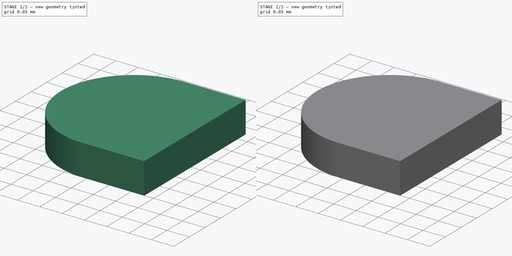
[diagram: build sequence overview — one tinted view per stage of 2, left to right]
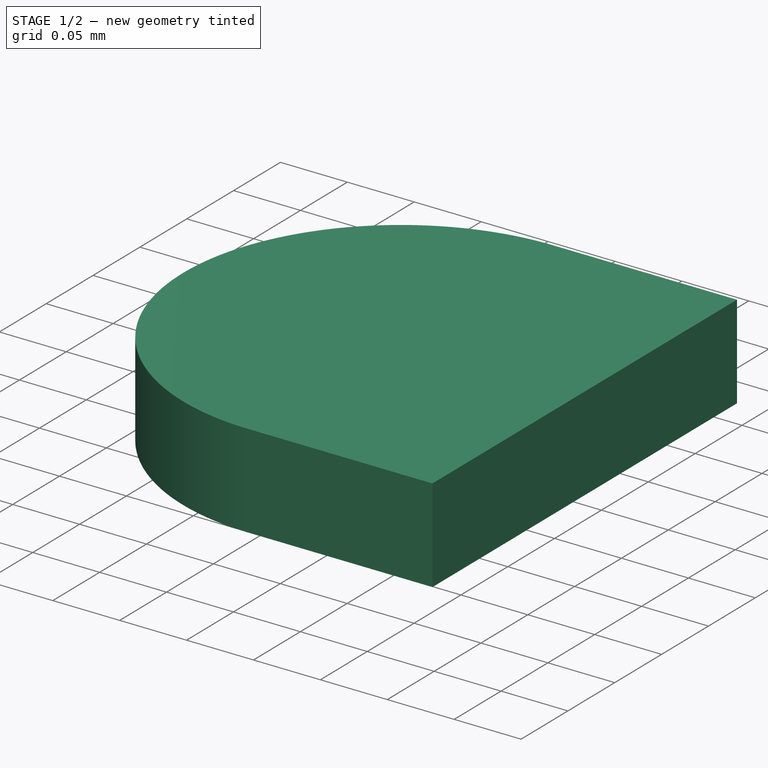
[diagram: stage 1 of 2 — iso view after this stage's code; geometry added in this stage tinted green]
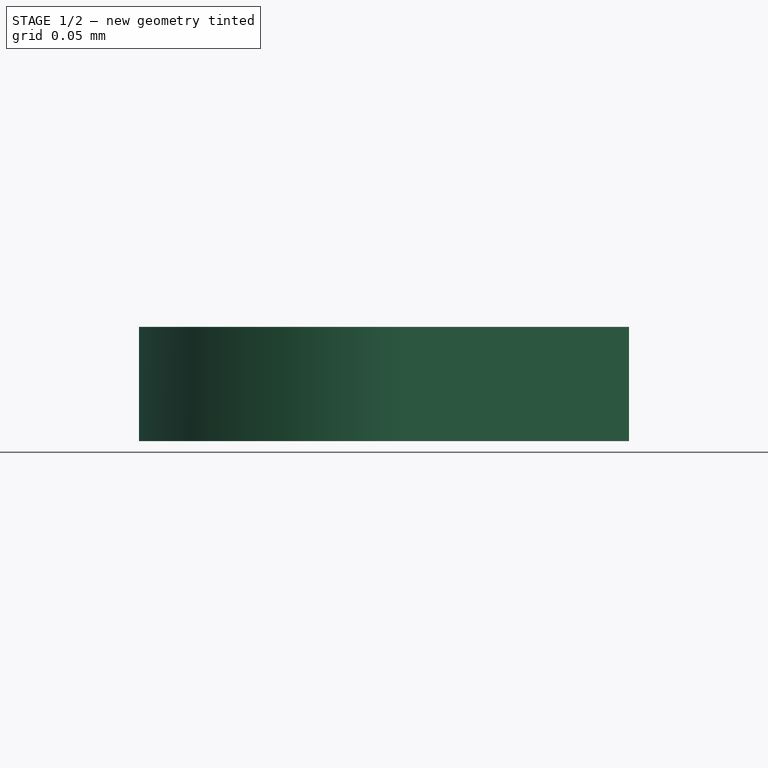
[diagram: stage 1 of 2 — front view after this stage's code; geometry added in this stage tinted green]
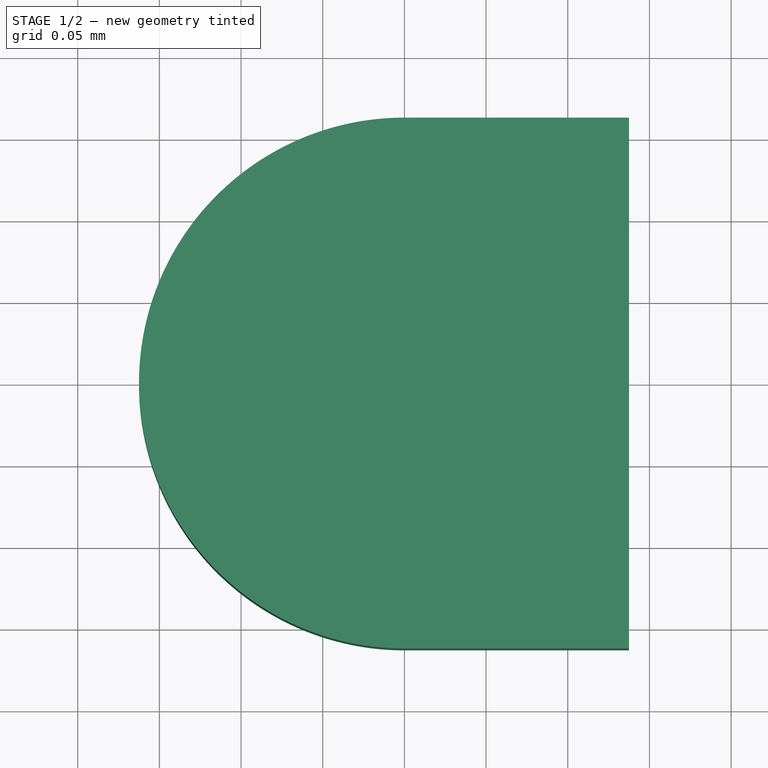
[diagram: stage 1 of 2 — top view after this stage's code; geometry added in this stage tinted green]
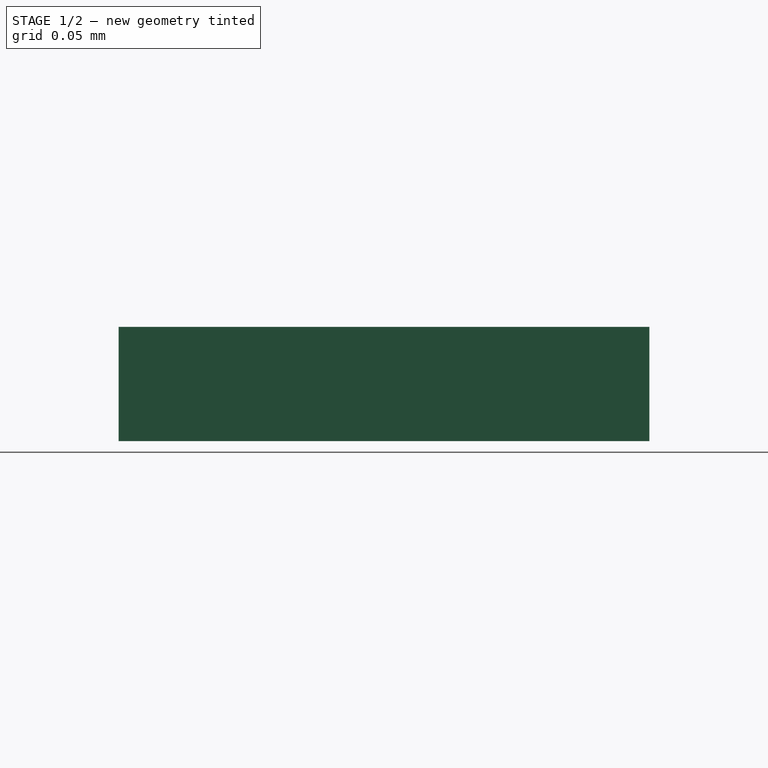
[diagram: stage 1 of 2 — right view after this stage's code; geometry added in this stage tinted green]
FCSTD DOCUMENT  (FreeCAD 0.16R6698 (Git))
Label: moon_base
License: All rights reserved
LicenseURL: http://en.wikipedia.org/wiki/All_rights_reserved
objects: Sketcher::SketchObject×2, PartDesign::Pad×1, PartDesign::Pocket×1
note: 6 computed .brp shape members not serialized (recipe doc carries the construction recipe); baked Part::Feature solids carry a one-line shape summary decoded from their .brp

FEATURE [Sketcher::SketchObject] Sketch
  sketch-geometry (4):
    g0: LineSegment StartX=-2.25898e-06 StartY=0.1625 StartZ=0 EndX=0.137498 EndY=0.1625 EndZ=0
    g1: LineSegment StartX=0.137498 StartY=0.1625 StartZ=0 EndX=0.137498 EndY=-0.1625 EndZ=0
    g2: LineSegment StartX=0.137498 StartY=-0.1625 StartZ=0 EndX=-2.25898e-06 EndY=-0.1625 EndZ=0
    g3: ArcOfCircle CenterX=0 CenterY=0 CenterZ=0 NormalX=0 NormalY=0 NormalZ=1 Radius=0.1625 StartAngle=1.57081 EndAngle=4.71238
  constraints (12):
    c: Horizontal(g0)
    c: Coincident(g0,g1)
    c: Vertical(g1)
    c: Coincident(g1,g2)
    c: Horizontal(g2)
    c: DistanceY(g1,g1) = 0.325
    c: DistanceX(g2,g2) = 0.1375
    c: Equal(g2,g0)
    c: Coincident(g3,g-1)
    c: Coincident(g3,g0)
    c: Radius(g3) = 0.1625
    c: Coincident(g3,g2)
FEATURE [PartDesign::Pad] Pad
  Length = 0.07
  Length2 = 100
  Sketch = -> Sketch
  Type = 0
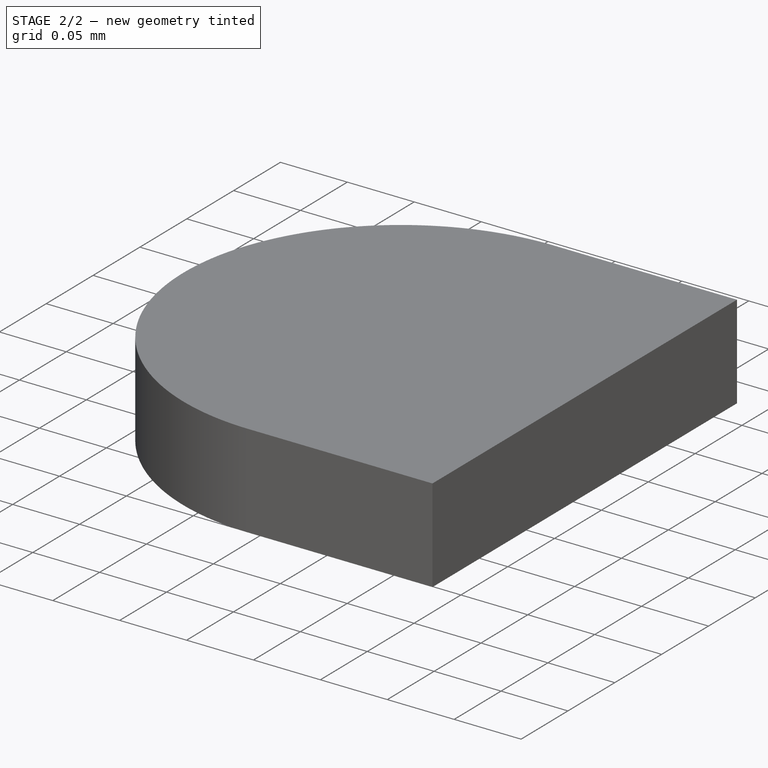
[diagram: stage 2 of 2 — iso view after this stage's code; geometry added in this stage tinted green]
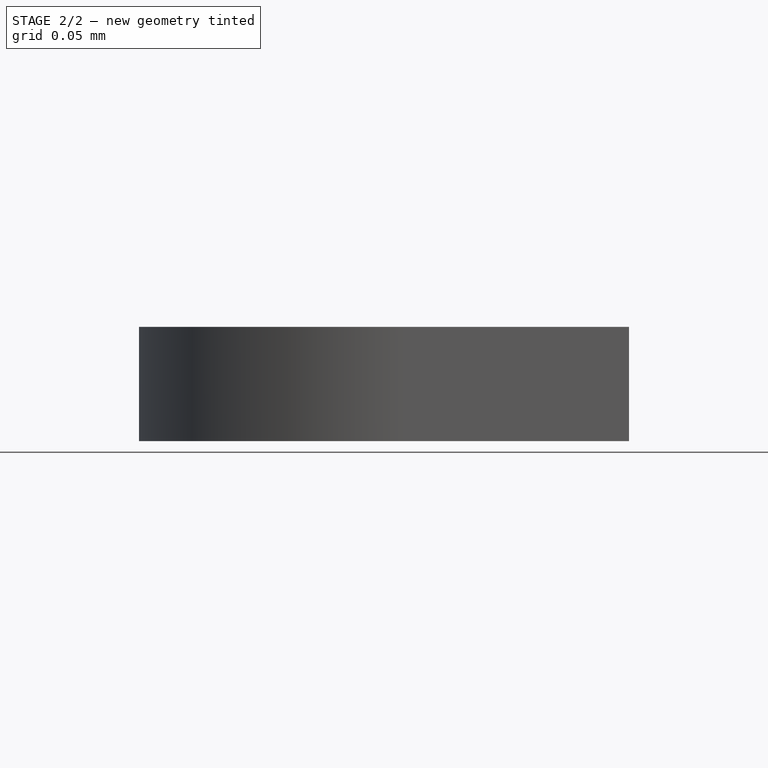
[diagram: stage 2 of 2 — front view after this stage's code; geometry added in this stage tinted green]
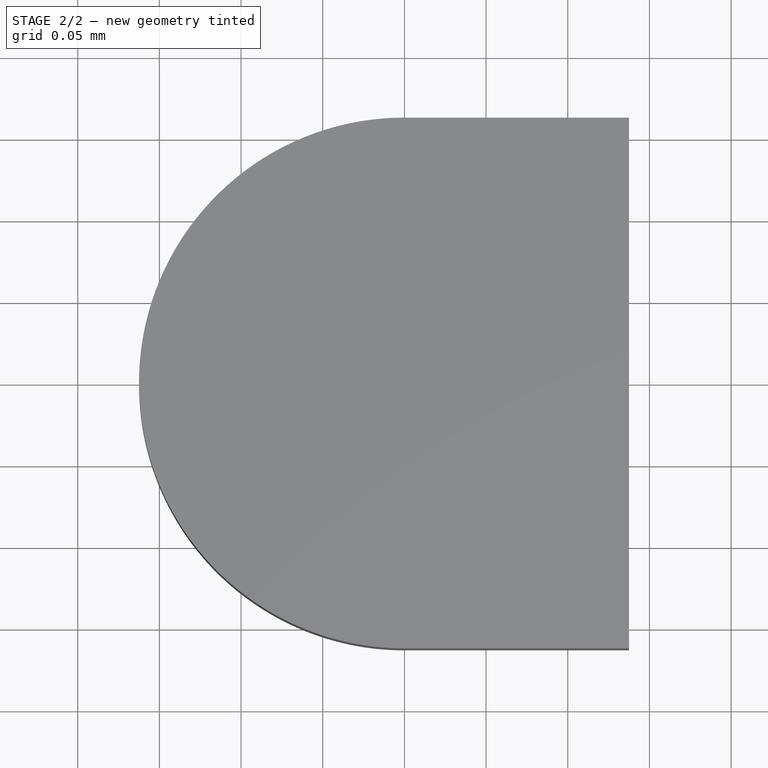
[diagram: stage 2 of 2 — top view after this stage's code; geometry added in this stage tinted green]
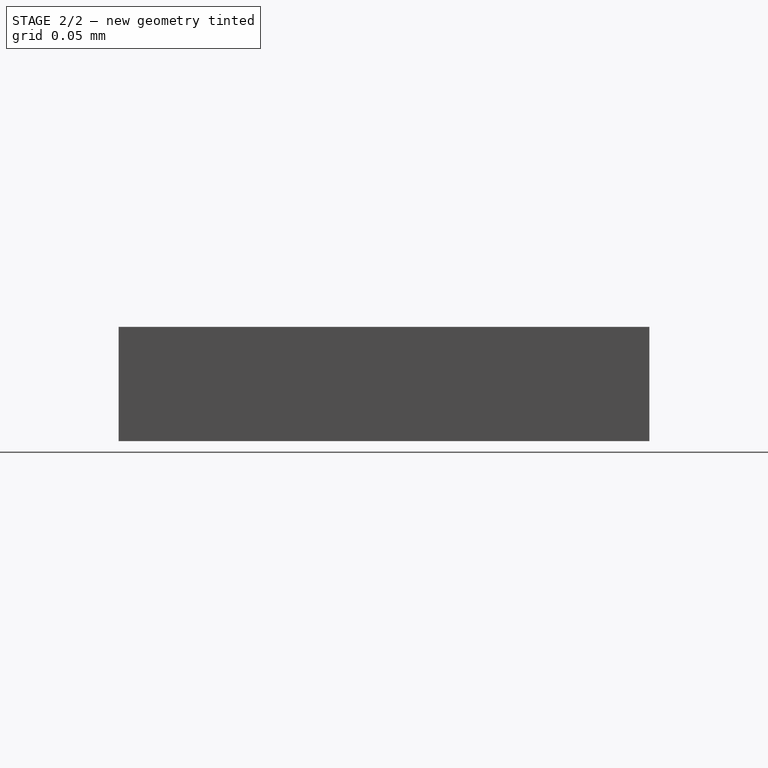
[diagram: stage 2 of 2 — right view after this stage's code; geometry added in this stage tinted green]
FEATURE [Sketcher::SketchObject] Sketch001
  Placement = pos=(0,0,0) rot=(1,0,0;3.14159rad)
  Support = -> Pad [Face5]
  sketch-geometry (8):
    g0: LineSegment StartX=-0.0525 StartY=0.14 StartZ=0 EndX=0.0275 EndY=0.14 EndZ=0
    g1: LineSegment StartX=0.0275 StartY=0.14 StartZ=0 EndX=0.0275 EndY=0.11 EndZ=0
    g2: LineSegment StartX=0.0275 StartY=0.11 StartZ=0 EndX=-0.0525 EndY=0.11 EndZ=0
    g3: LineSegment StartX=-0.0525 StartY=0.11 StartZ=0 EndX=-0.0525 EndY=0.14 EndZ=0
    g4: LineSegment StartX=-0.0525 StartY=-0.11 StartZ=0 EndX=0.0275 EndY=-0.11 EndZ=0
    g5: LineSegment StartX=0.0275 StartY=-0.11 StartZ=0 EndX=0.0275 EndY=-0.14 EndZ=0
    g6: LineSegment StartX=0.0275 StartY=-0.14 StartZ=0 EndX=-0.0525 EndY=-0.14 EndZ=0
    g7: LineSegment StartX=-0.0525 StartY=-0.14 StartZ=0 EndX=-0.0525 EndY=-0.11 EndZ=0
  constraints (23):
    c: Coincident(g0,g1)
    c: Coincident(g1,g2)
    c: Coincident(g2,g3)
    c: Coincident(g3,g0)
    c: Horizontal(g0)
    c: Horizontal(g2)
    c: Vertical(g1)
    c: Vertical(g3)
    c: Coincident(g4,g5)
    c: Coincident(g5,g6)
    c: Coincident(g6,g7)
    c: Coincident(g7,g4)
    c: Horizontal(g4)
    c: Horizontal(g6)
    c: Vertical(g5)
    c: Vertical(g7)
    c: DistanceX(g0,g0) = 0.08
    c: DistanceY(g1,g1) = 0.03
    c: Equal(g1,g5)
    c: Equal(g0,g4)
    c: Symmetric(g1,g4,g-1)
    c: DistanceY(g4,g1) = 0.22
    c: DistanceX(g2,g-1) = 0.0525
FEATURE [PartDesign::Pocket] Pocket
  Length = 0.068
  Sketch = -> Sketch001
  Type = 0
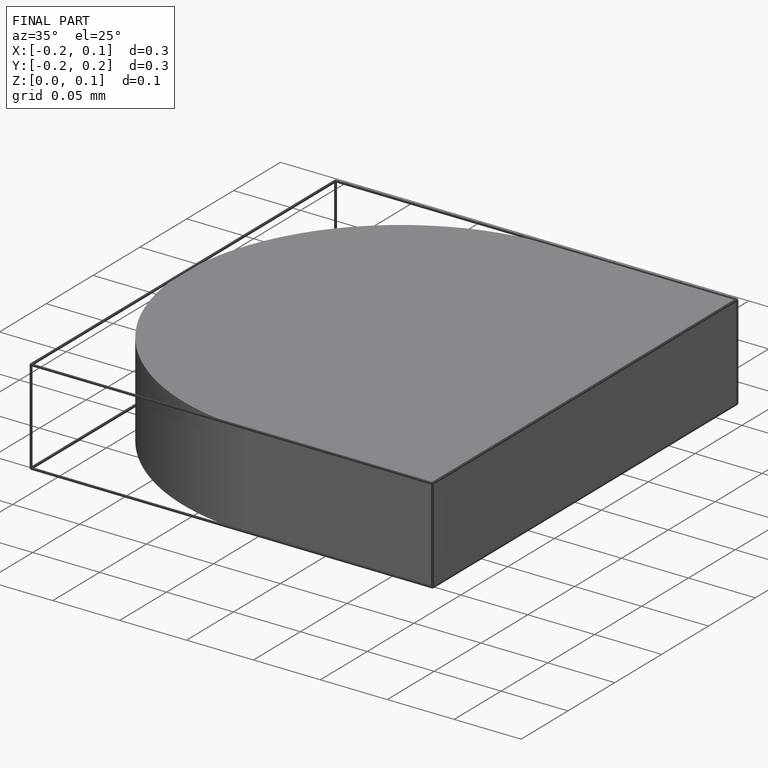
[diagram: finished part — iso view with bounding-box wireframe]
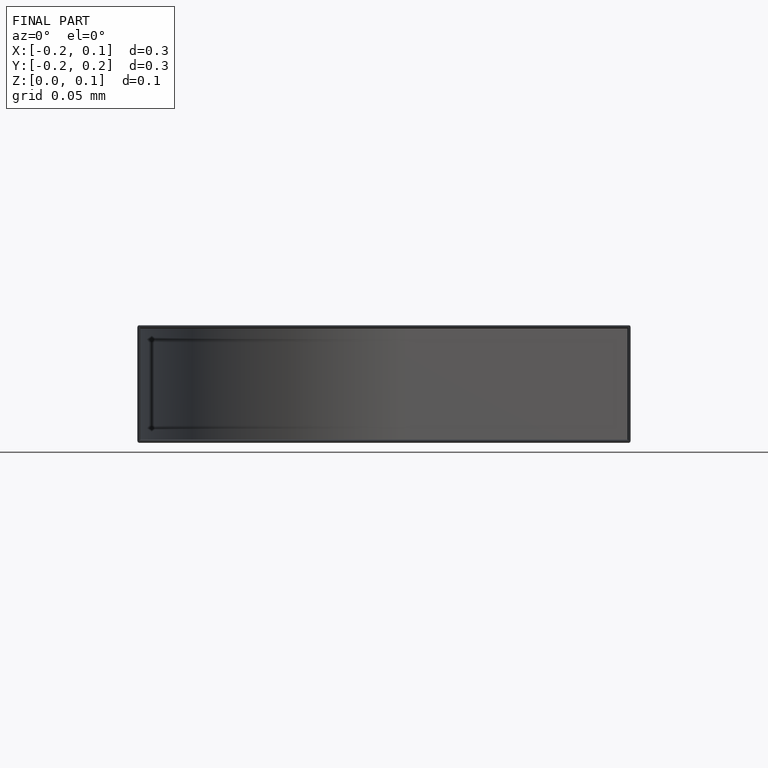
[diagram: finished part — front view with bounding-box wireframe]
